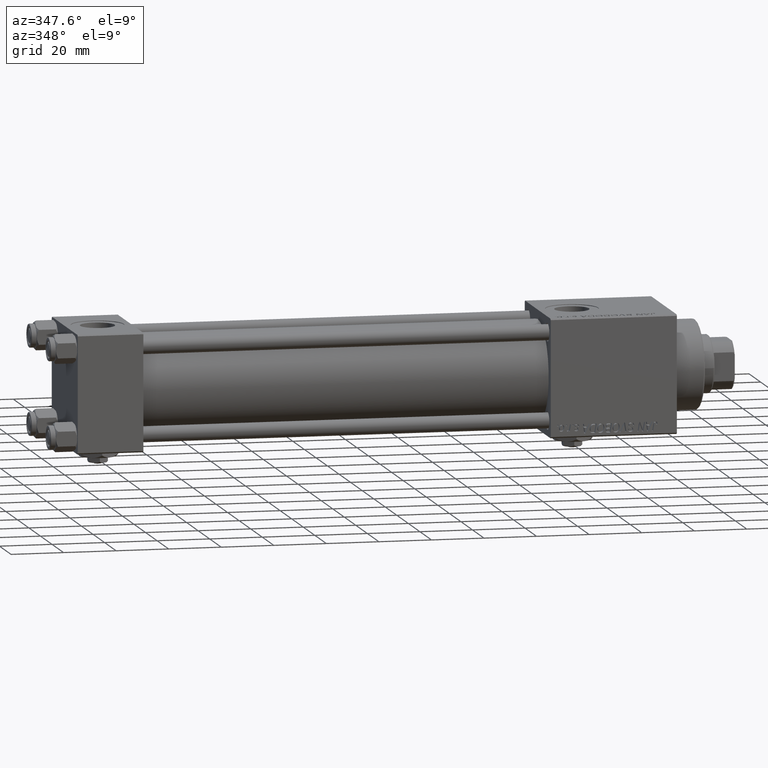
[diagram: clean part render]
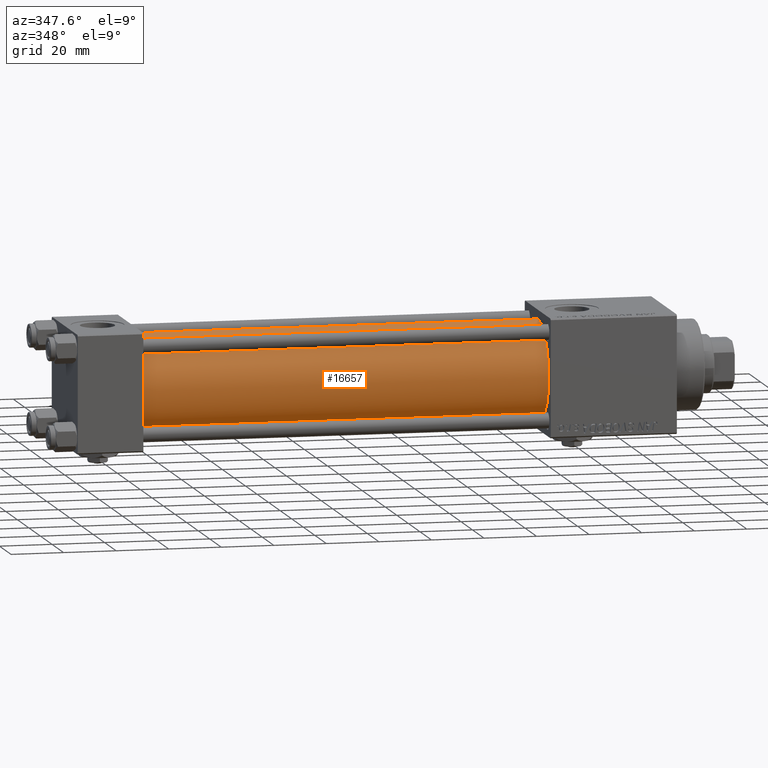
[diagram: same view with one face highlighted and labeled with its STEP entity id]
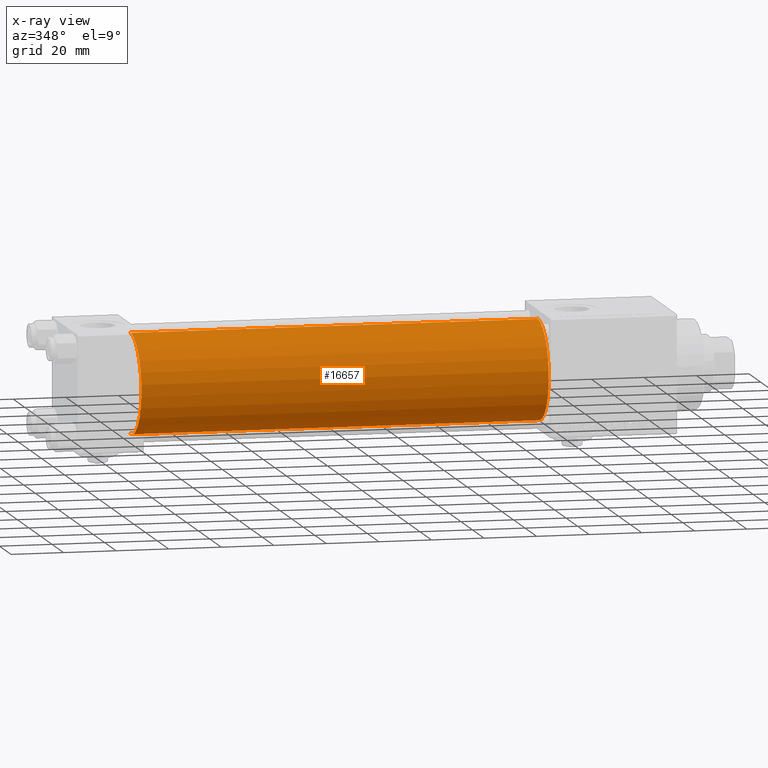
[diagram: x-ray of the same camera — body ghosted, the highlighted face saturated]
A machine part, auxiliary view. The second image highlights one B-rep face of the part: STEP entity #16657.
The next image is the same camera in x-ray: the body ghosted, the highlighted face saturated — about 0% of this face is hidden behind the body in this view.
In plain terms, the highlighted cylindrical surface (partial cylindrical patch) has radius 19 mm, axis along (-1, -0, -0).
Its self-contained STEP definition (entity closure, byte-faithful):
#1690 = CARTESIAN_POINT ( 'NONE',  ( 24.99999999999999289, -2.602085213965210642E-15, 0.000000000000000000 ) ) ;
#1857 = CARTESIAN_POINT ( 'NONE',  ( 24.99999999999999289, -2.752562955852396712E-16, -19.00000000000000000 ) ) ;
#5559 = ORIENTED_EDGE ( 'NONE', *, *, #50652, .T. ) ;
#6921 = AXIS2_PLACEMENT_3D ( 'NONE', #52904, #40429, #48312 ) ;
#7799 = CIRCLE ( 'NONE', #6921, 19.00000000000000000 ) ;
#12000 = DIRECTION ( 'NONE',  ( 0.000000000000000000, 0.000000000000000000, 1.000000000000000000 ) ) ;
#15213 = LINE ( 'NONE', #24391, #43147 ) ;
#15397 = CIRCLE ( 'NONE', #22319, 19.00000000000000000 ) ;
#15515 = FACE_OUTER_BOUND ( 'NONE', #22856, .T. ) ;
#16657 = ADVANCED_FACE ( 'NONE', ( #15515 ), #32031, .T. ) ;
#20237 = LINE ( 'NONE', #36765, #51340 ) ;
#22319 = AXIS2_PLACEMENT_3D ( 'NONE', #1690, #51756, #51234 ) ;
#22856 = EDGE_LOOP ( 'NONE', ( #28513, #51768, #34690, #5559 ) ) ;
#23999 = EDGE_CURVE ( 'NONE', #29307, #35892, #7799, .T. ) ;
#24391 = CARTESIAN_POINT ( 'NONE',  ( 180.0000000000000000, -2.752562955852396712E-16, -19.00000000000000000 ) ) ;
#25324 = EDGE_CURVE ( 'NONE', #35892, #45348, #15213, .T. ) ;
#28450 = VERTEX_POINT ( 'NONE', #50582 ) ;
#28513 = ORIENTED_EDGE ( 'NONE', *, *, #25324, .F. ) ;
#29307 = VERTEX_POINT ( 'NONE', #30866 ) ;
#30866 = CARTESIAN_POINT ( 'NONE',  ( 180.0000000000000000, -2.602085213965210642E-15, 19.00000000000000000 ) ) ;
#32031 = CYLINDRICAL_SURFACE ( 'NONE', #39810, 19.00000000000000000 ) ;
#32694 = DIRECTION ( 'NONE',  ( -1.000000000000000000, -0.000000000000000000, -0.000000000000000000 ) ) ;
#34690 = ORIENTED_EDGE ( 'NONE', *, *, #39972, .T. ) ;
#35892 = VERTEX_POINT ( 'NONE', #50140 ) ;
#36765 = CARTESIAN_POINT ( 'NONE',  ( 180.0000000000000000, -2.602085213965210642E-15, 19.00000000000000000 ) ) ;
#39810 = AXIS2_PLACEMENT_3D ( 'NONE', #53155, #40948, #12000 ) ;
#39972 = EDGE_CURVE ( 'NONE', #29307, #28450, #20237, .T. ) ;
#40120 = DIRECTION ( 'NONE',  ( -1.000000000000000000, -0.000000000000000000, -0.000000000000000000 ) ) ;
#40429 = DIRECTION ( 'NONE',  ( 1.000000000000000000, 0.000000000000000000, 0.000000000000000000 ) ) ;
#40948 = DIRECTION ( 'NONE',  ( -1.000000000000000000, -0.000000000000000000, -0.000000000000000000 ) ) ;
#43147 = VECTOR ( 'NONE', #40120, 1000.000000000000000 ) ;
#45348 = VERTEX_POINT ( 'NONE', #1857 ) ;
#48312 = DIRECTION ( 'NONE',  ( 0.000000000000000000, 0.000000000000000000, -1.000000000000000000 ) ) ;
#50140 = CARTESIAN_POINT ( 'NONE',  ( 180.0000000000000000, -2.752562955852396712E-16, -19.00000000000000000 ) ) ;
#50582 = CARTESIAN_POINT ( 'NONE',  ( 24.99999999999999289, -2.602085213965210642E-15, 19.00000000000000000 ) ) ;
#50652 = EDGE_CURVE ( 'NONE', #28450, #45348, #15397, .T. ) ;
#51234 = DIRECTION ( 'NONE',  ( 0.000000000000000000, 0.000000000000000000, 1.000000000000000000 ) ) ;
#51340 = VECTOR ( 'NONE', #32694, 1000.000000000000000 ) ;
#51756 = DIRECTION ( 'NONE',  ( 1.000000000000000000, -0.000000000000000000, 0.000000000000000000 ) ) ;
#51768 = ORIENTED_EDGE ( 'NONE', *, *, #23999, .F. ) ;
#52904 = CARTESIAN_POINT ( 'NONE',  ( 180.0000000000000000, -2.602085213965210642E-15, 0.000000000000000000 ) ) ;
#53155 = CARTESIAN_POINT ( 'NONE',  ( 180.0000000000000000, -2.602085213965210642E-15, 0.000000000000000000 ) ) ;